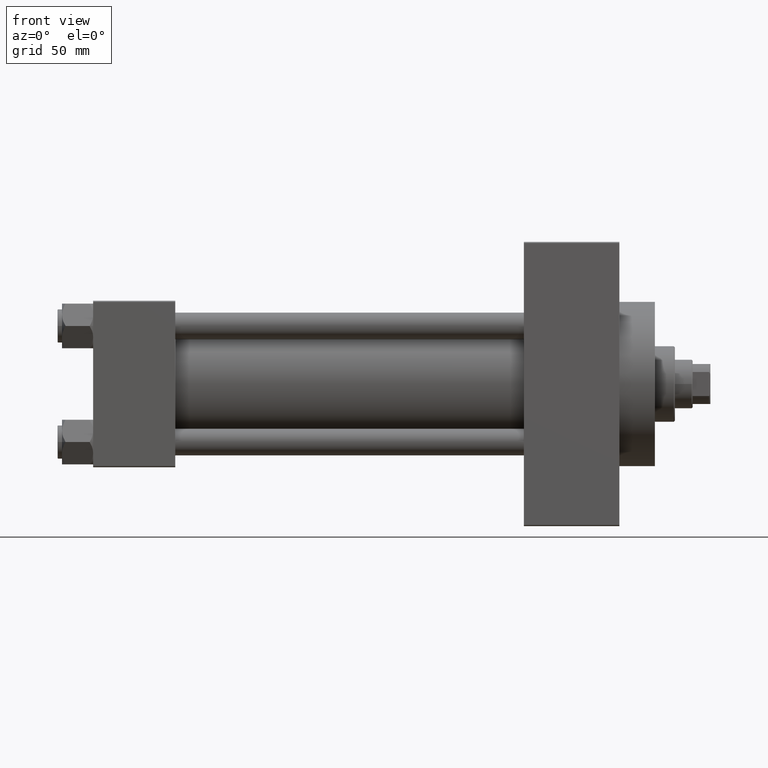
[diagram: clean part render]
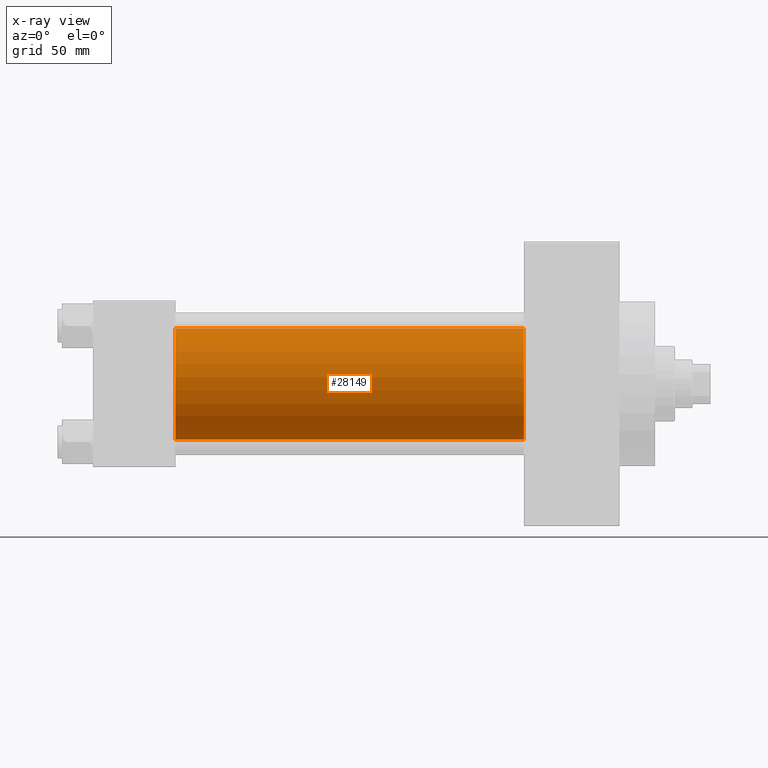
[diagram: x-ray — body ghosted, one internal face saturated and labeled with its STEP entity id]
A machine part, front view, then the same camera in x-ray: the body is ghosted and one INTERNAL B-rep face — a face not visible from any outside direction — is saturated and labeled: STEP entity #28149.
In plain terms, the highlighted cylindrical surface (partial cylindrical patch) has radius 25 mm, axis along (-1, -0, -0).
Its self-contained STEP definition (entity closure, byte-faithful):
#2818 = ORIENTED_EDGE ( 'NONE', *, *, #23101, .T. ) ;
#6311 = CIRCLE ( 'NONE', #29294, 25.00000000000000000 ) ;
#6959 = CARTESIAN_POINT ( 'NONE',  ( 194.0000000000000000, -2.602085213965210642E-15, 25.00000000000000000 ) ) ;
#8904 = CARTESIAN_POINT ( 'NONE',  ( 194.0000000000000000, 4.595317839031724996E-16, -25.00000000000000000 ) ) ;
#8988 = ORIENTED_EDGE ( 'NONE', *, *, #44810, .F. ) ;
#9389 = CARTESIAN_POINT ( 'NONE',  ( 194.0000000000000000, -2.602085213965210642E-15, 0.000000000000000000 ) ) ;
#17074 = FACE_OUTER_BOUND ( 'NONE', #29015, .T. ) ;
#17602 = LINE ( 'NONE', #40256, #33037 ) ;
#20886 = CARTESIAN_POINT ( 'NONE',  ( 194.0000000000000000, -2.602085213965210642E-15, 0.000000000000000000 ) ) ;
#21069 = DIRECTION ( 'NONE',  ( 1.000000000000000000, 0.000000000000000000, 0.000000000000000000 ) ) ;
#23101 = EDGE_CURVE ( 'NONE', #34277, #31006, #33290, .T. ) ;
#23285 = DIRECTION ( 'NONE',  ( 1.000000000000000000, 0.000000000000000000, 0.000000000000000000 ) ) ;
#23748 = CARTESIAN_POINT ( 'NONE',  ( 37.00000000000000000, -2.602085213965210642E-15, 0.000000000000000000 ) ) ;
#25225 = DIRECTION ( 'NONE',  ( -1.000000000000000000, -0.000000000000000000, -0.000000000000000000 ) ) ;
#28149 = ADVANCED_FACE ( 'NONE', ( #17074 ), #31621, .F. ) ;
#29015 = EDGE_LOOP ( 'NONE', ( #2818, #41917, #8988, #35326 ) ) ;
#29294 = AXIS2_PLACEMENT_3D ( 'NONE', #23748, #23285, #31609 ) ;
#31006 = VERTEX_POINT ( 'NONE', #46524 ) ;
#31076 = DIRECTION ( 'NONE',  ( -1.000000000000000000, -0.000000000000000000, -0.000000000000000000 ) ) ;
#31609 = DIRECTION ( 'NONE',  ( 0.000000000000000000, 0.000000000000000000, -1.000000000000000000 ) ) ;
#31621 = CYLINDRICAL_SURFACE ( 'NONE', #42554, 25.00000000000000000 ) ;
#33037 = VECTOR ( 'NONE', #25225, 1000.000000000000000 ) ;
#33290 = CIRCLE ( 'NONE', #39358, 25.00000000000000000 ) ;
#33846 = VECTOR ( 'NONE', #31076, 1000.000000000000000 ) ;
#34277 = VERTEX_POINT ( 'NONE', #6959 ) ;
#35326 = ORIENTED_EDGE ( 'NONE', *, *, #42492, .F. ) ;
#35438 = DIRECTION ( 'NONE',  ( -1.000000000000000000, -0.000000000000000000, -0.000000000000000000 ) ) ;
#36791 = CARTESIAN_POINT ( 'NONE',  ( 37.00000000000000000, -2.602085213965210642E-15, 25.00000000000000000 ) ) ;
#38231 = CARTESIAN_POINT ( 'NONE',  ( 37.00000000000000000, 4.595317839031724996E-16, -25.00000000000000000 ) ) ;
#38462 = LINE ( 'NONE', #8904, #33846 ) ;
#39358 = AXIS2_PLACEMENT_3D ( 'NONE', #9389, #21069, #46131 ) ;
#40256 = CARTESIAN_POINT ( 'NONE',  ( 194.0000000000000000, -2.602085213965210642E-15, 25.00000000000000000 ) ) ;
#41917 = ORIENTED_EDGE ( 'NONE', *, *, #44192, .T. ) ;
#42492 = EDGE_CURVE ( 'NONE', #34277, #45141, #17602, .T. ) ;
#42554 = AXIS2_PLACEMENT_3D ( 'NONE', #20886, #35438, #46428 ) ;
#44080 = VERTEX_POINT ( 'NONE', #38231 ) ;
#44192 = EDGE_CURVE ( 'NONE', #31006, #44080, #38462, .T. ) ;
#44810 = EDGE_CURVE ( 'NONE', #45141, #44080, #6311, .T. ) ;
#45141 = VERTEX_POINT ( 'NONE', #36791 ) ;
#46131 = DIRECTION ( 'NONE',  ( 0.000000000000000000, 0.000000000000000000, -1.000000000000000000 ) ) ;
#46428 = DIRECTION ( 'NONE',  ( 0.000000000000000000, 0.000000000000000000, 1.000000000000000000 ) ) ;
#46524 = CARTESIAN_POINT ( 'NONE',  ( 194.0000000000000000, 4.595317839031724996E-16, -25.00000000000000000 ) ) ;